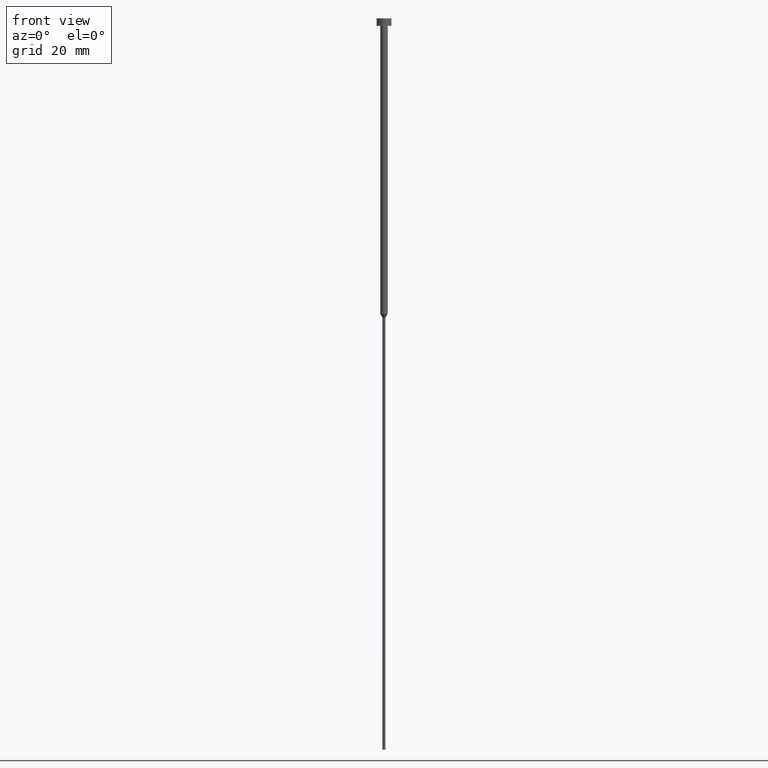
[diagram: clean part render]
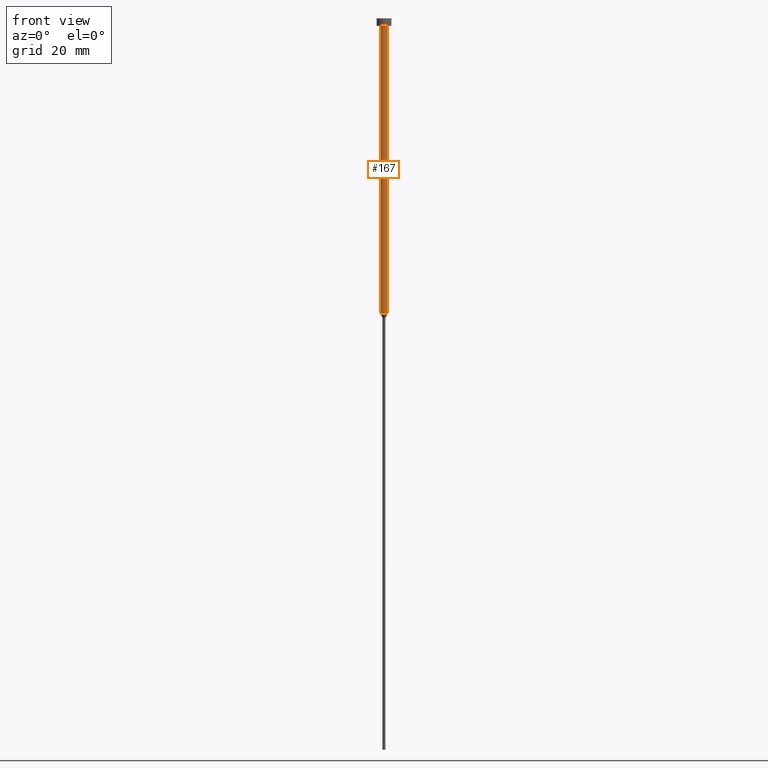
[diagram: same view with one face highlighted and labeled with its STEP entity id]
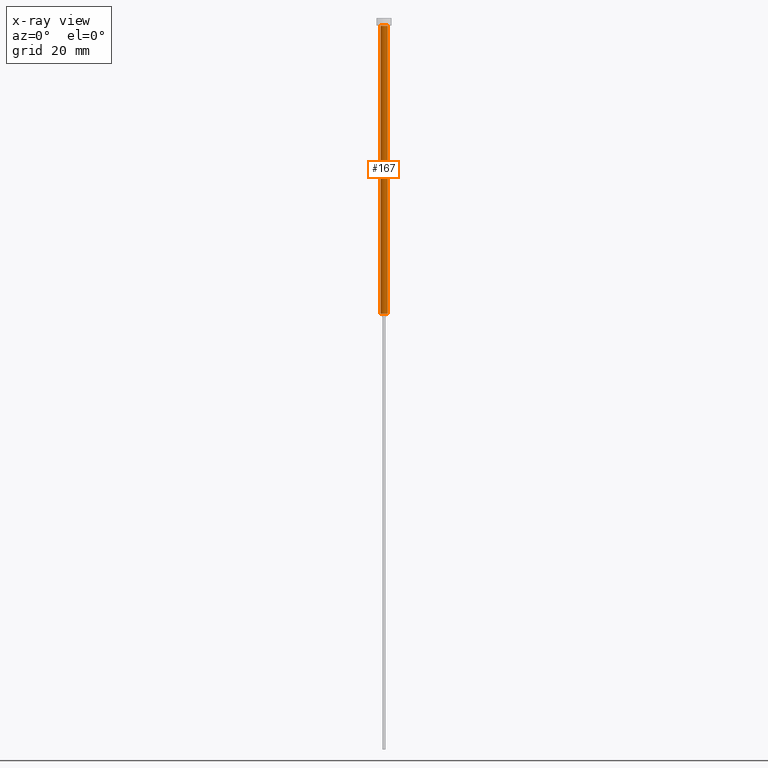
[diagram: x-ray of the same camera — body ghosted, the highlighted face saturated]
A machine part, front view. The second image highlights one B-rep face of the part: STEP entity #167.
The next image is the same camera in x-ray: the body ghosted, the highlighted face saturated — about 0% of this face is hidden behind the body in this view.
In plain terms, the highlighted cylindrical surface (edge-blend (fillet) strip) has radius 1 mm, axis along (-0, -0, 1).
Its self-contained STEP definition (entity closure, byte-faithful):
#15 = ORIENTED_EDGE ( 'NONE', *, *, #78, .F. ) ;
#32 = CARTESIAN_POINT ( 'NONE',  ( -1.000000000000003553, 1.224646799147357398E-16, -2.000000000000000444 ) ) ;
#43 = DIRECTION ( 'NONE',  ( -0.000000000000000000, -0.000000000000000000, 1.000000000000000000 ) ) ;
#53 = VERTEX_POINT ( 'NONE', #269 ) ;
#57 = LINE ( 'NONE', #146, #206 ) ;
#72 = EDGE_LOOP ( 'NONE', ( #107, #302, #108, #15 ) ) ;
#78 = EDGE_CURVE ( 'NONE', #192, #82, #286, .T. ) ;
#82 = VERTEX_POINT ( 'NONE', #252 ) ;
#94 = DIRECTION ( 'NONE',  ( -0.000000000000000000, -0.000000000000000000, 1.000000000000000000 ) ) ;
#100 = CARTESIAN_POINT ( 'NONE',  ( 1.000000000000003331, 0.000000000000000000, 0.000000000000000000 ) ) ;
#107 = ORIENTED_EDGE ( 'NONE', *, *, #157, .F. ) ;
#108 = ORIENTED_EDGE ( 'NONE', *, *, #297, .T. ) ;
#111 = CARTESIAN_POINT ( 'NONE',  ( 1.000000000000003109, 0.000000000000000000, -80.00000000000000000 ) ) ;
#117 = DIRECTION ( 'NONE',  ( -0.000000000000000000, -0.000000000000000000, 1.000000000000000000 ) ) ;
#126 = CIRCLE ( 'NONE', #223, 1.000000000000003109 ) ;
#129 = VERTEX_POINT ( 'NONE', #111 ) ;
#134 = CARTESIAN_POINT ( 'NONE',  ( 0.000000000000000000, 0.000000000000000000, -2.000000000000000444 ) ) ;
#136 = DIRECTION ( 'NONE',  ( -0.000000000000000000, -0.000000000000000000, 1.000000000000000000 ) ) ;
#146 = CARTESIAN_POINT ( 'NONE',  ( -1.000000000000003331, 1.224646799147357151E-16, 0.000000000000000000 ) ) ;
#148 = DIRECTION ( 'NONE',  ( -0.000000000000000000, -0.000000000000000000, 1.000000000000000000 ) ) ;
#149 = LINE ( 'NONE', #100, #238 ) ;
#150 = AXIS2_PLACEMENT_3D ( 'NONE', #134, #136, #303 ) ;
#153 = DIRECTION ( 'NONE',  ( 1.000000000000000000, 0.000000000000000000, 0.000000000000000000 ) ) ;
#157 = EDGE_CURVE ( 'NONE', #53, #192, #57, .T. ) ;
#167 = ADVANCED_FACE ( 'NONE', ( #337 ), #196, .T. ) ;
#169 = CARTESIAN_POINT ( 'NONE',  ( 0.000000000000000000, 0.000000000000000000, 0.000000000000000000 ) ) ;
#185 = AXIS2_PLACEMENT_3D ( 'NONE', #169, #148, #275 ) ;
#192 = VERTEX_POINT ( 'NONE', #32 ) ;
#196 = CYLINDRICAL_SURFACE ( 'NONE', #185, 1.000000000000003331 ) ;
#204 = CARTESIAN_POINT ( 'NONE',  ( 0.000000000000000000, 0.000000000000000000, -80.00000000000000000 ) ) ;
#206 = VECTOR ( 'NONE', #117, 1000.000000000000000 ) ;
#223 = AXIS2_PLACEMENT_3D ( 'NONE', #204, #94, #153 ) ;
#238 = VECTOR ( 'NONE', #43, 1000.000000000000000 ) ;
#252 = CARTESIAN_POINT ( 'NONE',  ( 1.000000000000003553, 0.000000000000000000, -2.000000000000000444 ) ) ;
#269 = CARTESIAN_POINT ( 'NONE',  ( -1.000000000000003109, 1.224646799147356905E-16, -80.00000000000000000 ) ) ;
#275 = DIRECTION ( 'NONE',  ( 1.000000000000000000, 0.000000000000000000, 0.000000000000000000 ) ) ;
#286 = CIRCLE ( 'NONE', #150, 1.000000000000003553 ) ;
#289 = EDGE_CURVE ( 'NONE', #53, #129, #126, .T. ) ;
#297 = EDGE_CURVE ( 'NONE', #129, #82, #149, .T. ) ;
#302 = ORIENTED_EDGE ( 'NONE', *, *, #289, .T. ) ;
#303 = DIRECTION ( 'NONE',  ( 1.000000000000000000, 0.000000000000000000, 0.000000000000000000 ) ) ;
#337 = FACE_OUTER_BOUND ( 'NONE', #72, .T. ) ;